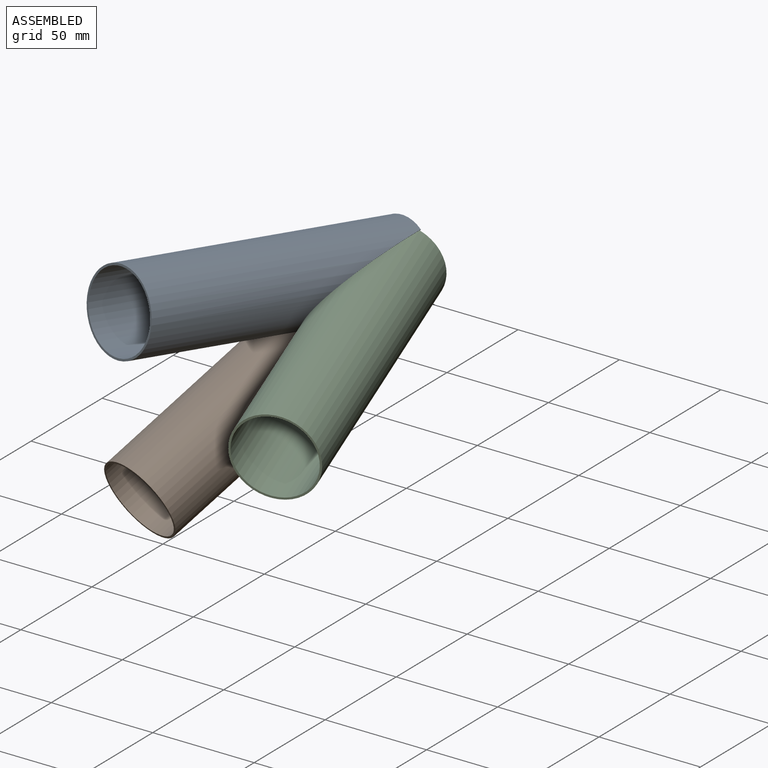
[diagram: assembled view]
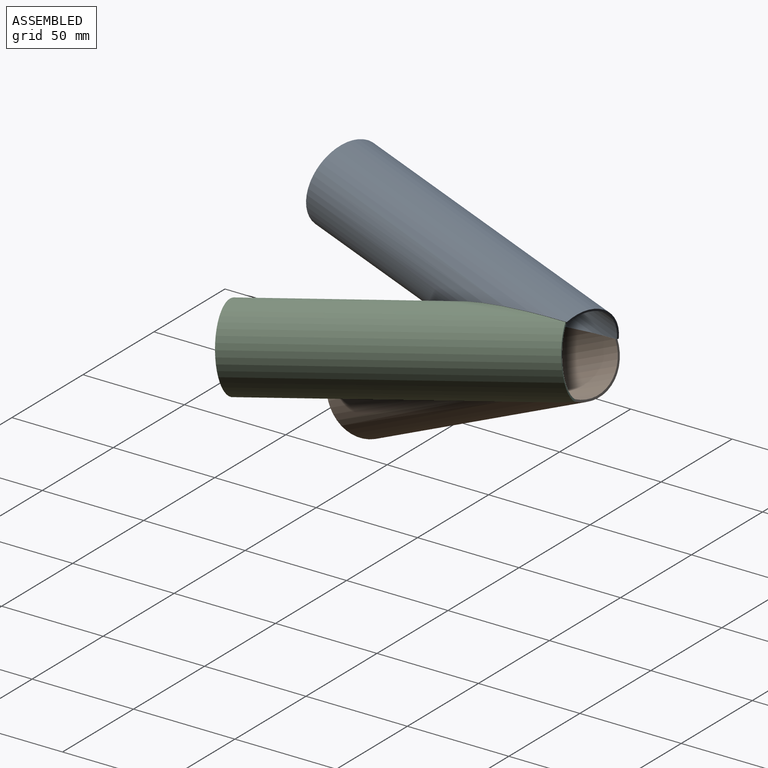
[diagram: assembled view, second angle]
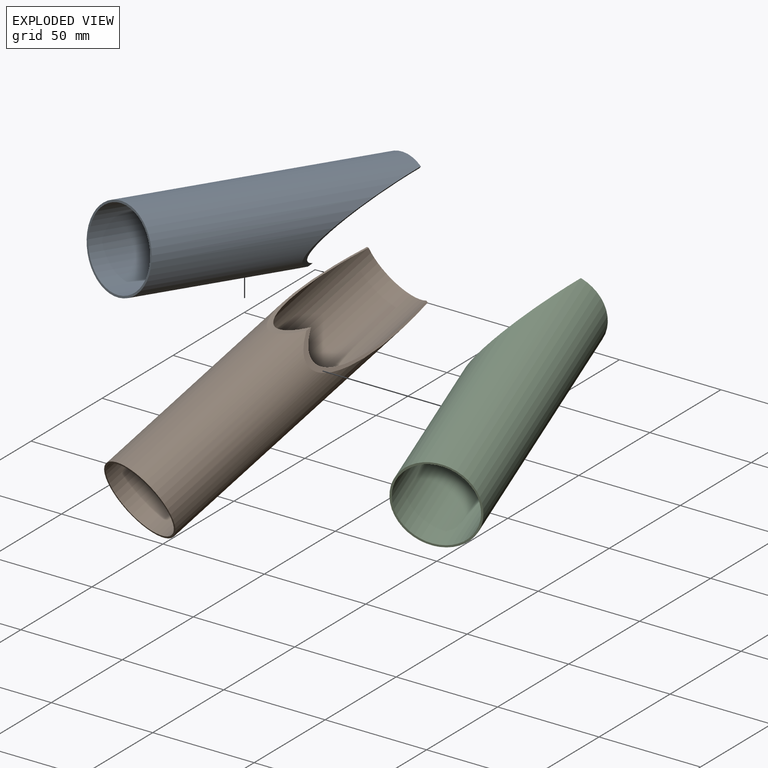
[diagram: exploded view]
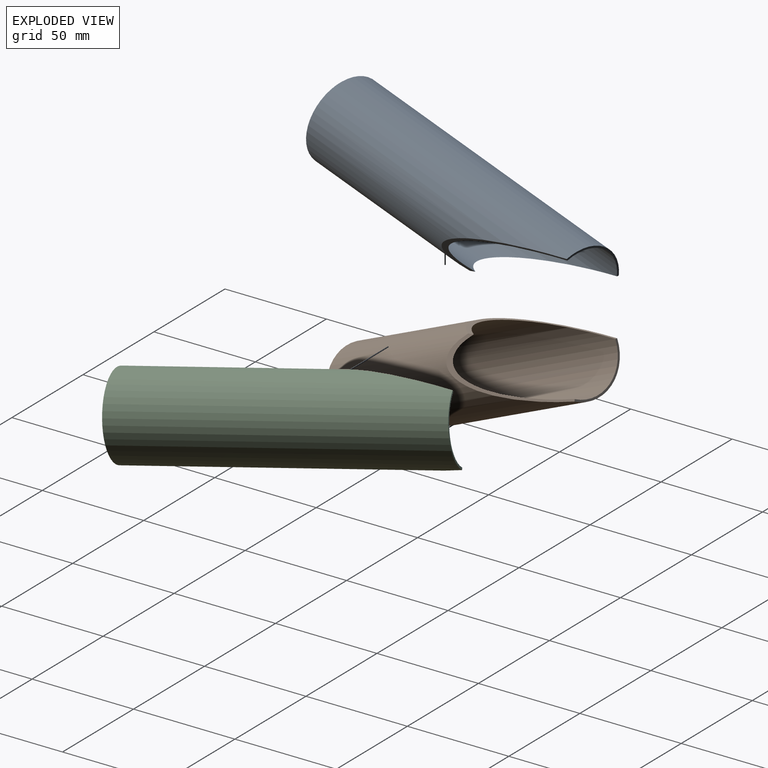
[diagram: exploded view, second angle]
ASSEMBLY  parts=3 mates=3
PART A: 6 faces, bbox 40.3x150x40.3 mm
  f0: cylinder r=19.15mm len=150mm, axis (0,1,0), area 14445.3mm2, adj f2,f3,f4,f5
  f1: cylinder r=20.15mm len=150mm, axis (0,1,0), area 15001.6mm2, adj f2,f3,f4,f5
  f2: plane 34.34x10.13mm, normal (0,1,0), area 40.1mm2, adj f0,f1,f4,f5
  f3: plane 40.3x40.3mm, normal (0,-1,0), area 123.5mm2, adj f0,f1
  f4: plane 64.98x30.7mm, normal (-0.81,0.3,0.5), area 140.8mm2, adj f0,f1,f2,f5
  f5: plane 64.98x30.7mm, normal (-0.81,0.3,-0.5), area 140.8mm2, adj f0,f1,f2,f4
PART B: same geometry as A
PART C: same geometry as A
PLACE A rot(axis=(-0.17,-0.98,0),120deg) t=(-92.63,85.46,-964.23)mm
PLACE B rot(axis=(0.26,0.96,0.15),121.5deg) t=(-92.81,84.53,-964.38)mm
PLACE C rot(axis=(0.48,-0.13,0.87),17.3deg) t=(-92.74,84.81,-964.43)mm
MATE planar B.f4 <-> C.f5  axis (0.85,-0.15,0.5) through (-88.31,41.15,-985.11)mm
MATE planar C.f4 <-> A.f5  axis (-0.87,0,0.49) through (-88.79,37.21,-957.26)mm
MATE planar B.f5 <-> A.f4  axis (-0.02,-0.15,0.99) through (-111.29,89.56,-963.99)mm
